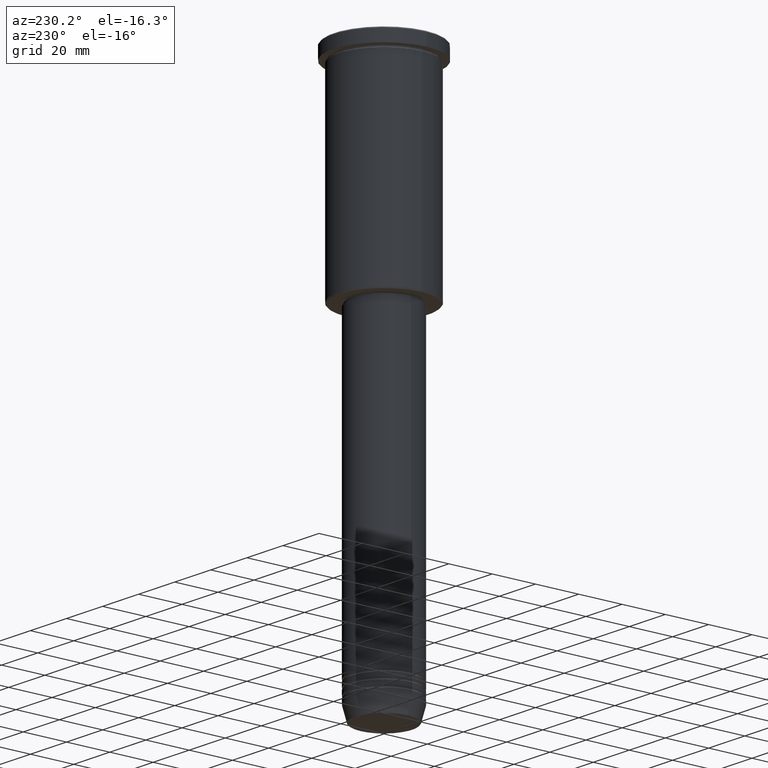
[diagram: clean part render]
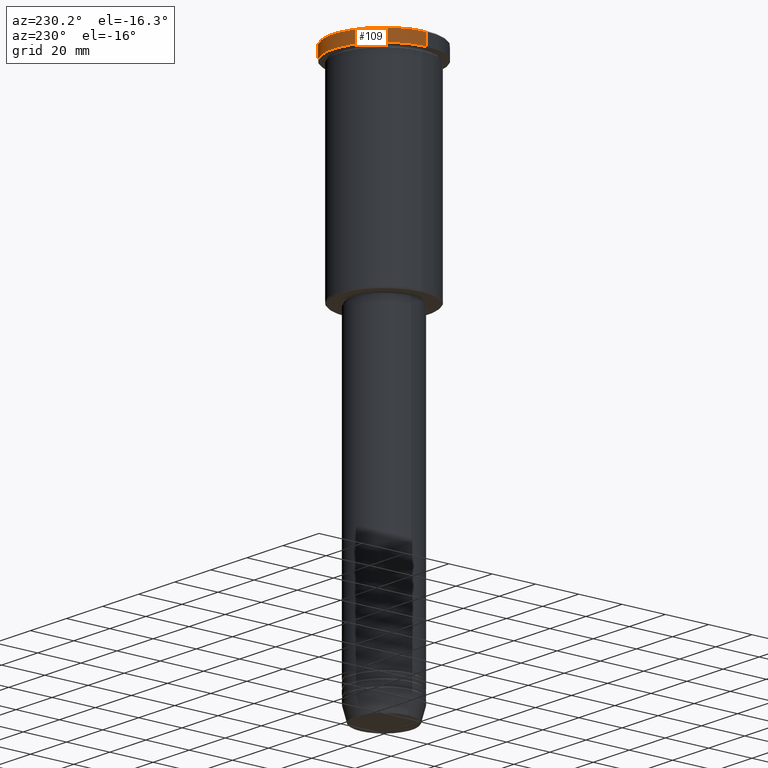
[diagram: same view with one face highlighted and labeled with its STEP entity id]
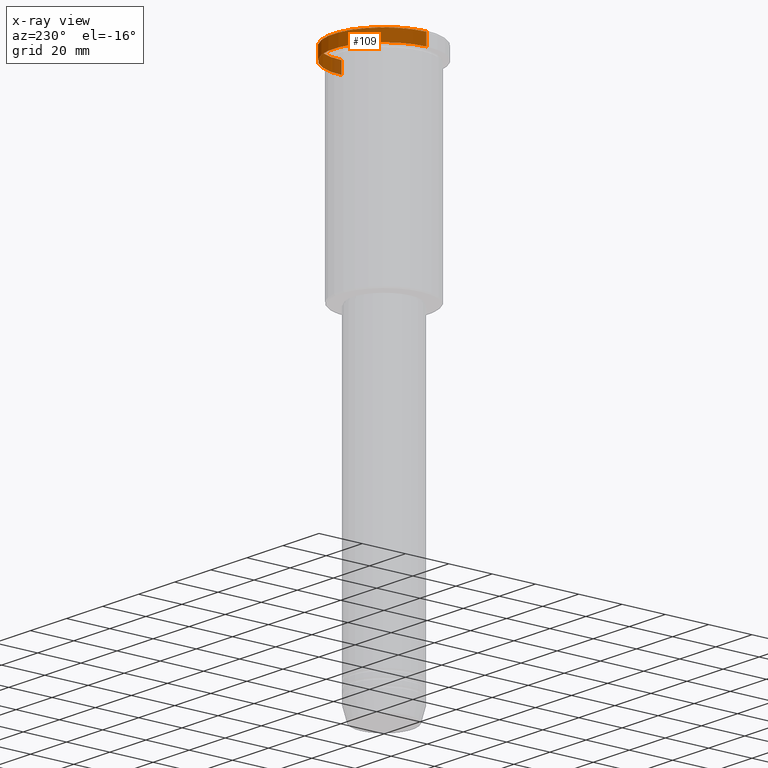
[diagram: x-ray of the same camera — body ghosted, the highlighted face saturated]
A machine part, auxiliary view. The second image highlights one B-rep face of the part: STEP entity #109.
The next image is the same camera in x-ray: the body ghosted, the highlighted face saturated — about 7% of this face is hidden behind the body in this view.
In plain terms, the highlighted cylindrical surface (partial cylindrical patch) has radius 23.5 mm, axis along (-0, -0, 1).
Its self-contained STEP definition (entity closure, byte-faithful):
#11 = CARTESIAN_POINT ( 'NONE',  ( 0.000000000000000000, 0.000000000000000000, -5.999999999999994671 ) ) ;
#31 = LINE ( 'NONE', #594, #345 ) ;
#64 = DIRECTION ( 'NONE',  ( -0.000000000000000000, -0.000000000000000000, 1.000000000000000000 ) ) ;
#75 = EDGE_CURVE ( 'NONE', #278, #704, #123, .T. ) ;
#109 = ADVANCED_FACE ( 'NONE', ( #967 ), #683, .T. ) ;
#119 = AXIS2_PLACEMENT_3D ( 'NONE', #894, #64, #957 ) ;
#123 = LINE ( 'NONE', #206, #374 ) ;
#134 = CIRCLE ( 'NONE', #515, 23.50000000000000000 ) ;
#181 = CIRCLE ( 'NONE', #568, 23.50000000000000000 ) ;
#206 = CARTESIAN_POINT ( 'NONE',  ( 23.50000000000000000, 0.000000000000000000, 0.000000000000000000 ) ) ;
#278 = VERTEX_POINT ( 'NONE', #1179 ) ;
#345 = VECTOR ( 'NONE', #569, 1000.000000000000000 ) ;
#362 = VERTEX_POINT ( 'NONE', #749 ) ;
#374 = VECTOR ( 'NONE', #661, 1000.000000000000000 ) ;
#403 = CARTESIAN_POINT ( 'NONE',  ( 0.000000000000000000, 0.000000000000000000, -0.4999999999999726885 ) ) ;
#419 = EDGE_CURVE ( 'NONE', #362, #704, #134, .T. ) ;
#515 = AXIS2_PLACEMENT_3D ( 'NONE', #403, #774, #680 ) ;
#568 = AXIS2_PLACEMENT_3D ( 'NONE', #11, #758, #1125 ) ;
#569 = DIRECTION ( 'NONE',  ( -0.000000000000000000, -0.000000000000000000, 1.000000000000000000 ) ) ;
#594 = CARTESIAN_POINT ( 'NONE',  ( -23.50000000000000000, 2.877919977996280320E-15, 0.000000000000000000 ) ) ;
#661 = DIRECTION ( 'NONE',  ( -0.000000000000000000, -0.000000000000000000, 1.000000000000000000 ) ) ;
#680 = DIRECTION ( 'NONE',  ( 1.000000000000000000, 0.000000000000000000, 0.000000000000000000 ) ) ;
#683 = CYLINDRICAL_SURFACE ( 'NONE', #119, 23.50000000000000000 ) ;
#699 = ORIENTED_EDGE ( 'NONE', *, *, #822, .T. ) ;
#704 = VERTEX_POINT ( 'NONE', #816 ) ;
#749 = CARTESIAN_POINT ( 'NONE',  ( -23.50000000000000000, 2.877919977996280320E-15, -0.4999999999999726885 ) ) ;
#758 = DIRECTION ( 'NONE',  ( -0.000000000000000000, -0.000000000000000000, 1.000000000000000000 ) ) ;
#774 = DIRECTION ( 'NONE',  ( 0.000000000000000000, 0.000000000000000000, -1.000000000000000000 ) ) ;
#784 = ORIENTED_EDGE ( 'NONE', *, *, #419, .T. ) ;
#816 = CARTESIAN_POINT ( 'NONE',  ( 23.50000000000000000, 0.000000000000000000, -0.4999999999999726885 ) ) ;
#822 = EDGE_CURVE ( 'NONE', #278, #897, #181, .T. ) ;
#846 = CARTESIAN_POINT ( 'NONE',  ( -23.50000000000000000, 2.877919977996280320E-15, -5.999999999999994671 ) ) ;
#894 = CARTESIAN_POINT ( 'NONE',  ( 0.000000000000000000, 0.000000000000000000, 0.000000000000000000 ) ) ;
#896 = EDGE_CURVE ( 'NONE', #897, #362, #31, .T. ) ;
#897 = VERTEX_POINT ( 'NONE', #846 ) ;
#957 = DIRECTION ( 'NONE',  ( 1.000000000000000000, 0.000000000000000000, 0.000000000000000000 ) ) ;
#967 = FACE_OUTER_BOUND ( 'NONE', #1152, .T. ) ;
#1022 = ORIENTED_EDGE ( 'NONE', *, *, #896, .T. ) ;
#1125 = DIRECTION ( 'NONE',  ( 1.000000000000000000, 0.000000000000000000, 0.000000000000000000 ) ) ;
#1152 = EDGE_LOOP ( 'NONE', ( #699, #1022, #784, #1180 ) ) ;
#1179 = CARTESIAN_POINT ( 'NONE',  ( 23.50000000000000000, 0.000000000000000000, -5.999999999999994671 ) ) ;
#1180 = ORIENTED_EDGE ( 'NONE', *, *, #75, .F. ) ;